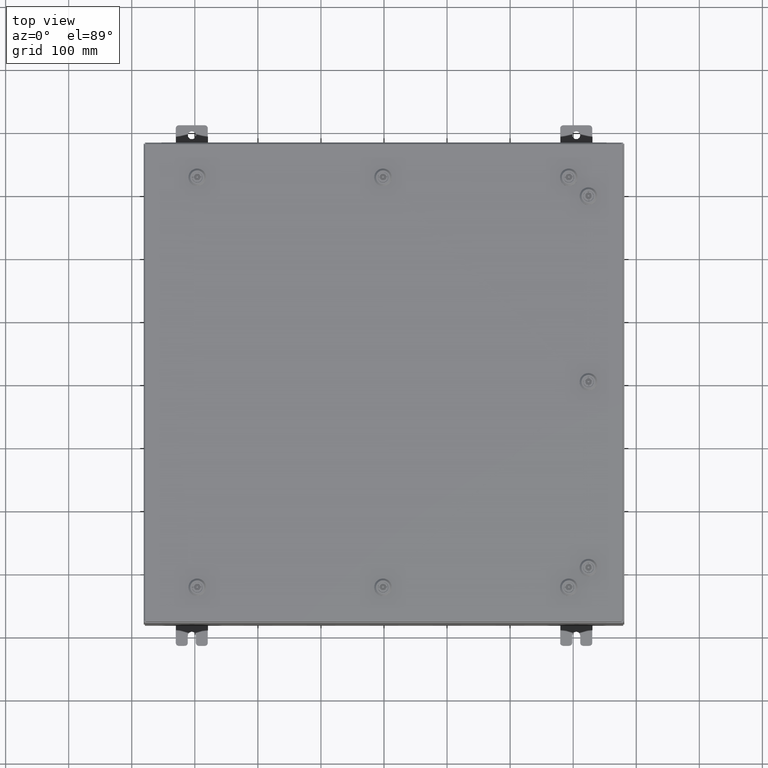
[diagram: clean part render]
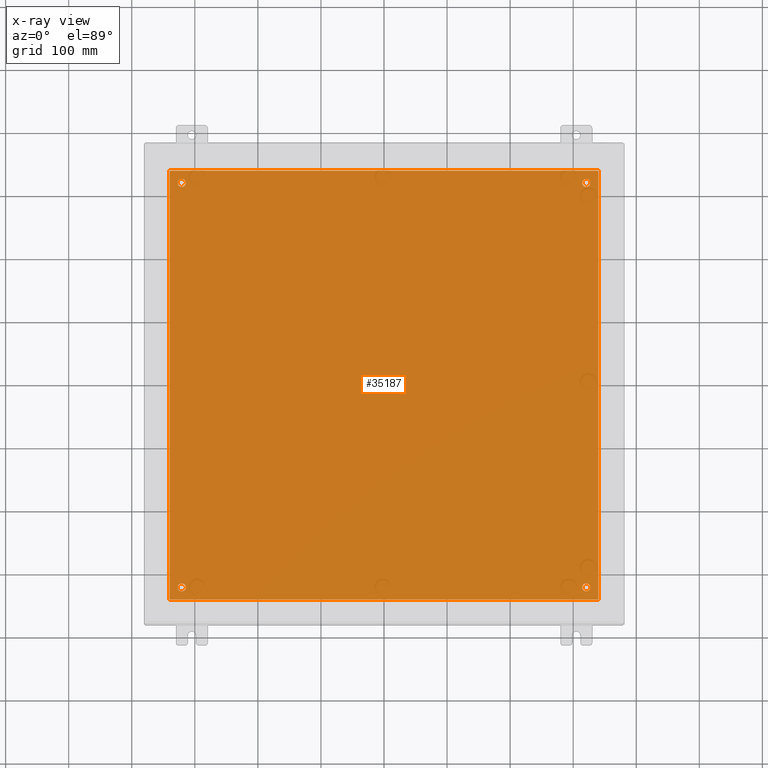
[diagram: x-ray — body ghosted, one internal face saturated and labeled with its STEP entity id]
A machine part, top view, then the same camera in x-ray: the body is ghosted and one INTERNAL B-rep face — a face not visible from any outside direction — is saturated and labeled: STEP entity #35187.
In plain terms, the highlighted planar face has unit normal (0, 0, -1).
Its self-contained STEP definition (entity closure, byte-faithful):
#5 = VERTEX_POINT ( 'NONE', #50845 ) ;
#1211 = CARTESIAN_POINT ( 'NONE',  ( 12.87500000000000500, 12.62500000000000000, -0.1039999999999999800 ) ) ;
#1635 = CARTESIAN_POINT ( 'NONE',  ( -12.62500000000000400, 12.62500000000000000, -0.1039999999999999800 ) ) ;
#2714 = LINE ( 'NONE', #10836, #29649 ) ;
#3035 = ORIENTED_EDGE ( 'NONE', *, *, #24702, .F. ) ;
#4022 = CIRCLE ( 'NONE', #24560, 0.2500000000000008900 ) ;
#4664 = CARTESIAN_POINT ( 'NONE',  ( 13.50000000000000000, 13.38299999999999900, -0.1040000000000009100 ) ) ;
#4812 = CARTESIAN_POINT ( 'NONE',  ( -12.87500000000000500, 12.62500000000000000, -0.1039999999999999800 ) ) ;
#4830 = FACE_BOUND ( 'NONE', #63193, .T. ) ;
#5329 = ORIENTED_EDGE ( 'NONE', *, *, #29043, .F. ) ;
#6706 = EDGE_LOOP ( 'NONE', ( #53442, #50993 ) ) ;
#6715 = DIRECTION ( 'NONE',  ( -1.000000000000000000, 0.0000000000000000000, 0.0000000000000000000 ) ) ;
#7943 = VERTEX_POINT ( 'NONE', #26036 ) ;
#8200 = VERTEX_POINT ( 'NONE', #55246 ) ;
#8265 = AXIS2_PLACEMENT_3D ( 'NONE', #40957, #10630, #46109 ) ;
#8271 = DIRECTION ( 'NONE',  ( -0.0000000000000000000, -0.0000000000000000000, 1.000000000000000000 ) ) ;
#10630 = DIRECTION ( 'NONE',  ( -0.0000000000000000000, -0.0000000000000000000, 1.000000000000000000 ) ) ;
#10836 = CARTESIAN_POINT ( 'NONE',  ( 13.38299999999999900, -13.38299999999999700, -0.1040000000000009100 ) ) ;
#10942 = ORIENTED_EDGE ( 'NONE', *, *, #63638, .T. ) ;
#12845 = VERTEX_POINT ( 'NONE', #58635 ) ;
#14407 = DIRECTION ( 'NONE',  ( -0.0000000000000000000, -0.0000000000000000000, 1.000000000000000000 ) ) ;
#14879 = DIRECTION ( 'NONE',  ( 0.0000000000000000000, 0.0000000000000000000, -1.000000000000000000 ) ) ;
#16719 = FACE_BOUND ( 'NONE', #6706, .T. ) ;
#16877 = VERTEX_POINT ( 'NONE', #43757 ) ;
#18513 = DIRECTION ( 'NONE',  ( -0.0000000000000000000, -0.0000000000000000000, 1.000000000000000000 ) ) ;
#19648 = VERTEX_POINT ( 'NONE', #30963 ) ;
#20125 = ORIENTED_EDGE ( 'NONE', *, *, #47905, .T. ) ;
#20632 = EDGE_CURVE ( 'NONE', #50036, #31348, #32380, .T. ) ;
#20996 = AXIS2_PLACEMENT_3D ( 'NONE', #48887, #18513, #54013 ) ;
#22008 = VERTEX_POINT ( 'NONE', #1211 ) ;
#22172 = CARTESIAN_POINT ( 'NONE',  ( -12.37500000000000400, -12.62500000000000000, -0.1039999999999999800 ) ) ;
#22297 = CIRCLE ( 'NONE', #38664, 0.2500000000000008900 ) ;
#22788 = EDGE_CURVE ( 'NONE', #16877, #63876, #33013, .T. ) ;
#23148 = CARTESIAN_POINT ( 'NONE',  ( 12.62500000000000400, -12.62500000000000000, -0.1039999999999999800 ) ) ;
#23507 = VECTOR ( 'NONE', #36828, 39.37007874015748100 ) ;
#24560 = AXIS2_PLACEMENT_3D ( 'NONE', #38609, #8271, #43729 ) ;
#24639 = AXIS2_PLACEMENT_3D ( 'NONE', #1635, #37043, #6715 ) ;
#24702 = EDGE_CURVE ( 'NONE', #19648, #50036, #44811, .T. ) ;
#26036 = CARTESIAN_POINT ( 'NONE',  ( 12.37500000000000400, 12.62500000000000000, -0.1039999999999999800 ) ) ;
#26132 = DIRECTION ( 'NONE',  ( -0.0000000000000000000, -0.0000000000000000000, 1.000000000000000000 ) ) ;
#26194 = VERTEX_POINT ( 'NONE', #22172 ) ;
#27126 = CIRCLE ( 'NONE', #29161, 0.2500000000000008900 ) ;
#28227 = DIRECTION ( 'NONE',  ( -1.000000000000000000, 0.0000000000000000000, 0.0000000000000000000 ) ) ;
#29043 = EDGE_CURVE ( 'NONE', #31348, #8200, #50444, .T. ) ;
#29064 = EDGE_CURVE ( 'NONE', #46704, #12845, #36914, .T. ) ;
#29161 = AXIS2_PLACEMENT_3D ( 'NONE', #56523, #26132, #61632 ) ;
#29473 = AXIS2_PLACEMENT_3D ( 'NONE', #40154, #14879, #65672 ) ;
#29544 = CARTESIAN_POINT ( 'NONE',  ( 12.62500000000000400, 12.62500000000000000, -0.1039999999999999800 ) ) ;
#29649 = VECTOR ( 'NONE', #61417, 39.37007874015748100 ) ;
#29922 = CARTESIAN_POINT ( 'NONE',  ( 12.37500000000000400, -12.62500000000000000, -0.1039999999999999800 ) ) ;
#30195 = FACE_OUTER_BOUND ( 'NONE', #37427, .T. ) ;
#30507 = ORIENTED_EDGE ( 'NONE', *, *, #58381, .T. ) ;
#30760 = ORIENTED_EDGE ( 'NONE', *, *, #20632, .F. ) ;
#30963 = CARTESIAN_POINT ( 'NONE',  ( 13.38299999999999900, 13.38299999999999700, -0.1040000000000009100 ) ) ;
#31274 = VECTOR ( 'NONE', #55438, 39.37007874015748100 ) ;
#31348 = VERTEX_POINT ( 'NONE', #51828 ) ;
#31737 = CARTESIAN_POINT ( 'NONE',  ( -13.50000000000000000, -13.38299999999999900, -0.1040000000000009100 ) ) ;
#31780 = FACE_BOUND ( 'NONE', #37978, .T. ) ;
#32380 = LINE ( 'NONE', #54463, #56196 ) ;
#33008 = CIRCLE ( 'NONE', #20996, 0.2500000000000008900 ) ;
#33013 = CIRCLE ( 'NONE', #48252, 0.2500000000000008900 ) ;
#33130 = ORIENTED_EDGE ( 'NONE', *, *, #29064, .T. ) ;
#33872 = AXIS2_PLACEMENT_3D ( 'NONE', #29544, #65011, #34608 ) ;
#34466 = DIRECTION ( 'NONE',  ( 0.0000000000000000000, -1.000000000000000000, 0.0000000000000000000 ) ) ;
#34608 = DIRECTION ( 'NONE',  ( -1.000000000000000000, 0.0000000000000000000, 0.0000000000000000000 ) ) ;
#35187 = ADVANCED_FACE ( 'NONE', ( #4830, #31780, #16719, #43716, #30195 ), #55468, .T. ) ;
#35791 = CARTESIAN_POINT ( 'NONE',  ( -13.38299999999999900, 13.38299999999999700, -0.1040000000000009100 ) ) ;
#36828 = DIRECTION ( 'NONE',  ( 1.000000000000000000, -0.0000000000000000000, -0.0000000000000000000 ) ) ;
#36914 = CIRCLE ( 'NONE', #24639, 0.2500000000000008900 ) ;
#37043 = DIRECTION ( 'NONE',  ( -0.0000000000000000000, -0.0000000000000000000, 1.000000000000000000 ) ) ;
#37427 = EDGE_LOOP ( 'NONE', ( #5329, #30760, #3035, #39444 ) ) ;
#37978 = EDGE_LOOP ( 'NONE', ( #64614, #20125 ) ) ;
#38609 = CARTESIAN_POINT ( 'NONE',  ( -12.62500000000000400, 12.62500000000000000, -0.1039999999999999800 ) ) ;
#38664 = AXIS2_PLACEMENT_3D ( 'NONE', #23148, #58621, #28227 ) ;
#39444 = ORIENTED_EDGE ( 'NONE', *, *, #56350, .F. ) ;
#40154 = CARTESIAN_POINT ( 'NONE',  ( 0.0000000000000000000, 0.0000000000000000000, -0.1039999999999999800 ) ) ;
#40957 = CARTESIAN_POINT ( 'NONE',  ( -12.62500000000000400, -12.62500000000000000, -0.1039999999999999800 ) ) ;
#42833 = EDGE_CURVE ( 'NONE', #5, #26194, #27126, .T. ) ;
#43716 = FACE_BOUND ( 'NONE', #54780, .T. ) ;
#43729 = DIRECTION ( 'NONE',  ( -1.000000000000000000, 0.0000000000000000000, 0.0000000000000000000 ) ) ;
#43757 = CARTESIAN_POINT ( 'NONE',  ( 12.87500000000000500, -12.62500000000000000, -0.1039999999999999800 ) ) ;
#44773 = CARTESIAN_POINT ( 'NONE',  ( 12.62500000000000400, -12.62500000000000000, -0.1039999999999999800 ) ) ;
#44811 = LINE ( 'NONE', #4664, #31274 ) ;
#46109 = DIRECTION ( 'NONE',  ( -1.000000000000000000, 0.0000000000000000000, 0.0000000000000000000 ) ) ;
#46704 = VERTEX_POINT ( 'NONE', #4812 ) ;
#47905 = EDGE_CURVE ( 'NONE', #63876, #16877, #22297, .T. ) ;
#48252 = AXIS2_PLACEMENT_3D ( 'NONE', #44773, #14407, #49882 ) ;
#48887 = CARTESIAN_POINT ( 'NONE',  ( 12.62500000000000400, 12.62500000000000000, -0.1039999999999999800 ) ) ;
#49882 = DIRECTION ( 'NONE',  ( -1.000000000000000000, 0.0000000000000000000, 0.0000000000000000000 ) ) ;
#50036 = VERTEX_POINT ( 'NONE', #35791 ) ;
#50444 = LINE ( 'NONE', #31737, #23507 ) ;
#50845 = CARTESIAN_POINT ( 'NONE',  ( -12.87500000000000500, -12.62500000000000000, -0.1039999999999999800 ) ) ;
#50993 = ORIENTED_EDGE ( 'NONE', *, *, #53369, .T. ) ;
#51057 = CIRCLE ( 'NONE', #8265, 0.2500000000000008900 ) ;
#51678 = CIRCLE ( 'NONE', #33872, 0.2500000000000008900 ) ;
#51828 = CARTESIAN_POINT ( 'NONE',  ( -13.38299999999999900, -13.38299999999999900, -0.1040000000000009100 ) ) ;
#53369 = EDGE_CURVE ( 'NONE', #7943, #22008, #33008, .T. ) ;
#53442 = ORIENTED_EDGE ( 'NONE', *, *, #62869, .T. ) ;
#54013 = DIRECTION ( 'NONE',  ( -1.000000000000000000, 0.0000000000000000000, 0.0000000000000000000 ) ) ;
#54463 = CARTESIAN_POINT ( 'NONE',  ( -13.38299999999999900, 13.38299999999999700, -0.1040000000000009100 ) ) ;
#54780 = EDGE_LOOP ( 'NONE', ( #10942, #33130 ) ) ;
#55114 = ORIENTED_EDGE ( 'NONE', *, *, #42833, .T. ) ;
#55246 = CARTESIAN_POINT ( 'NONE',  ( 13.38299999999999900, -13.38299999999999700, -0.1040000000000009100 ) ) ;
#55438 = DIRECTION ( 'NONE',  ( -1.000000000000000000, -0.0000000000000000000, -0.0000000000000000000 ) ) ;
#55468 = PLANE ( 'NONE',  #29473 ) ;
#56196 = VECTOR ( 'NONE', #34466, 39.37007874015748100 ) ;
#56350 = EDGE_CURVE ( 'NONE', #8200, #19648, #2714, .T. ) ;
#56523 = CARTESIAN_POINT ( 'NONE',  ( -12.62500000000000400, -12.62500000000000000, -0.1039999999999999800 ) ) ;
#58381 = EDGE_CURVE ( 'NONE', #26194, #5, #51057, .T. ) ;
#58621 = DIRECTION ( 'NONE',  ( -0.0000000000000000000, -0.0000000000000000000, 1.000000000000000000 ) ) ;
#58635 = CARTESIAN_POINT ( 'NONE',  ( -12.37500000000000400, 12.62500000000000000, -0.1039999999999999800 ) ) ;
#61417 = DIRECTION ( 'NONE',  ( 0.0000000000000000000, 1.000000000000000000, 0.0000000000000000000 ) ) ;
#61632 = DIRECTION ( 'NONE',  ( -1.000000000000000000, 0.0000000000000000000, 0.0000000000000000000 ) ) ;
#62869 = EDGE_CURVE ( 'NONE', #22008, #7943, #51678, .T. ) ;
#63193 = EDGE_LOOP ( 'NONE', ( #30507, #55114 ) ) ;
#63638 = EDGE_CURVE ( 'NONE', #12845, #46704, #4022, .T. ) ;
#63876 = VERTEX_POINT ( 'NONE', #29922 ) ;
#64614 = ORIENTED_EDGE ( 'NONE', *, *, #22788, .T. ) ;
#65011 = DIRECTION ( 'NONE',  ( -0.0000000000000000000, -0.0000000000000000000, 1.000000000000000000 ) ) ;
#65672 = DIRECTION ( 'NONE',  ( -1.000000000000000000, 0.0000000000000000000, -0.0000000000000000000 ) ) ;